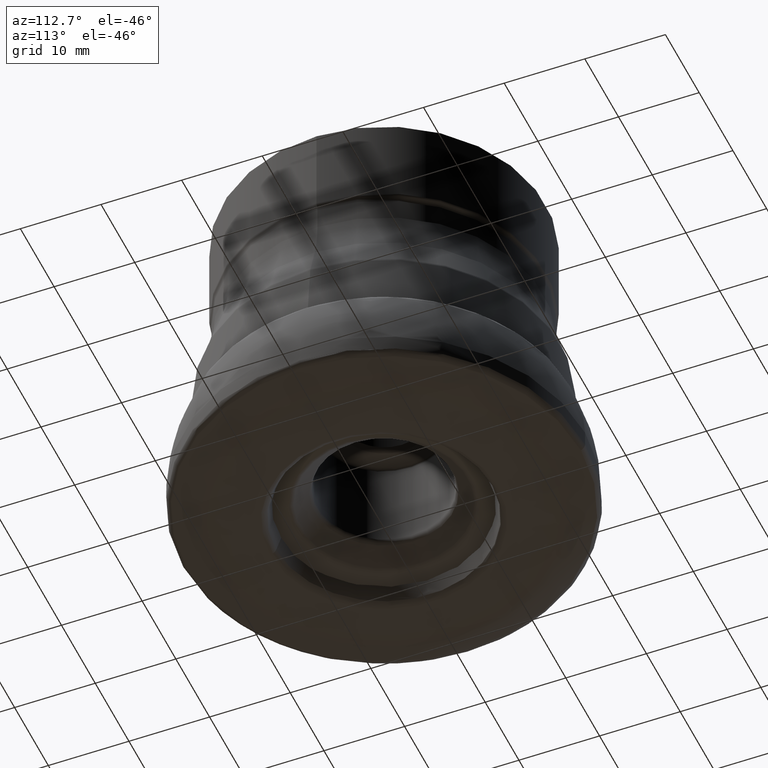
[diagram: clean part render]
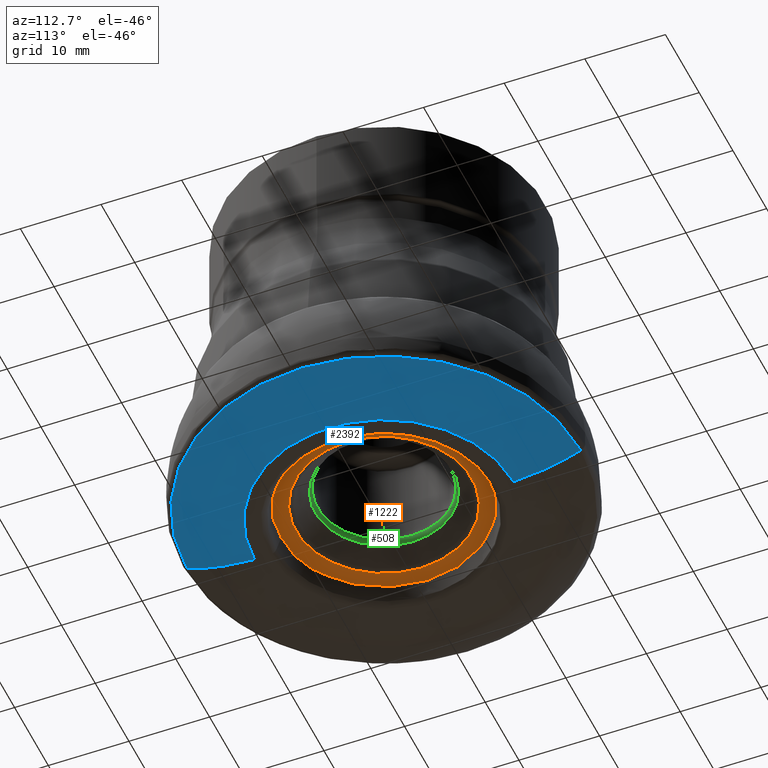
[diagram: same view with three faces highlighted in distinct colors, each labeled with its STEP entity id]
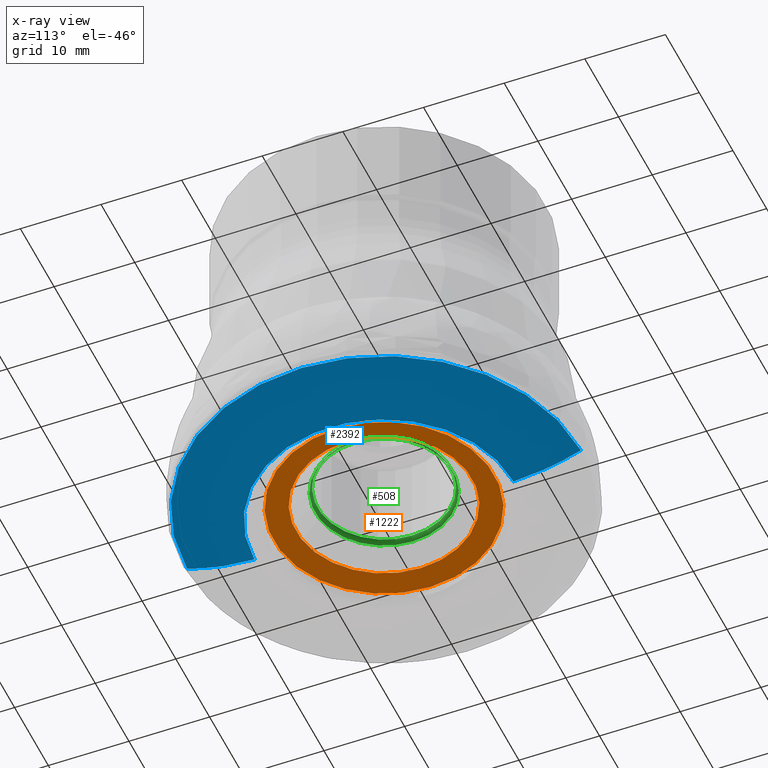
[diagram: x-ray of the same camera — body ghosted, the three highlighted faces saturated]
A machine part, auxiliary view with three faces highlighted in distinct colors.
The next image is the same camera in x-ray (body ghosted, the three faces saturated) — at least one of them is partly hidden behind the body in this view.
Their STEP definitions:

[orange] entity #1222 — the highlighted conical surface has half-angle 80 deg.
#198 = CARTESIAN_POINT ( 'NONE',  ( 13.67939974208696100, 0.0000000000000000000, -2.105485586522187100 ) ) ;
#199 = VERTEX_POINT ( 'NONE', #198 ) ;
#439 = CONICAL_SURFACE ( 'NONE', #1131, 13.67939974208696100, 1.396263401593441000 ) ;
#605 = DIRECTION ( 'NONE',  ( -0.0000000000000000000, -0.0000000000000000000, 1.000000000000000000 ) ) ;
#678 = CARTESIAN_POINT ( 'NONE',  ( 10.91237005489940000, 0.0000000000000000000, -2.593387576800428600 ) ) ;
#797 = CARTESIAN_POINT ( 'NONE',  ( 0.0000000000000000000, 0.0000000000000000000, -2.105485586522187100 ) ) ;
#841 = EDGE_CURVE ( 'NONE', #199, #199, #1325, .T. ) ;
#904 = ORIENTED_EDGE ( 'NONE', *, *, #2297, .F. ) ;
#1037 = ORIENTED_EDGE ( 'NONE', *, *, #841, .T. ) ;
#1076 = DIRECTION ( 'NONE',  ( 1.000000000000000000, 0.0000000000000000000, 0.0000000000000000000 ) ) ;
#1131 = AXIS2_PLACEMENT_3D ( 'NONE', #1693, #605, #1076 ) ;
#1152 = DIRECTION ( 'NONE',  ( -0.0000000000000000000, -0.0000000000000000000, 1.000000000000000000 ) ) ;
#1222 = ADVANCED_FACE ( 'NONE', ( #2151, #2231 ), #439, .F. ) ;
#1309 = CIRCLE ( 'NONE', #2067, 10.91237005489940000 ) ;
#1311 = DIRECTION ( 'NONE',  ( -0.0000000000000000000, -0.0000000000000000000, 1.000000000000000000 ) ) ;
#1325 = CIRCLE ( 'NONE', #1918, 13.67939974208696100 ) ;
#1455 = CARTESIAN_POINT ( 'NONE',  ( 0.0000000000000000000, 0.0000000000000000000, -2.593387576800428600 ) ) ;
#1501 = EDGE_LOOP ( 'NONE', ( #1037 ) ) ;
#1595 = EDGE_LOOP ( 'NONE', ( #904 ) ) ;
#1693 = CARTESIAN_POINT ( 'NONE',  ( 0.0000000000000000000, 0.0000000000000000000, -2.105485586522187100 ) ) ;
#1918 = AXIS2_PLACEMENT_3D ( 'NONE', #797, #1311, #2487 ) ;
#2049 = VERTEX_POINT ( 'NONE', #678 ) ;
#2067 = AXIS2_PLACEMENT_3D ( 'NONE', #1455, #1152, #2387 ) ;
#2151 = FACE_BOUND ( 'NONE', #1595, .T. ) ;
#2231 = FACE_OUTER_BOUND ( 'NONE', #1501, .T. ) ;
#2297 = EDGE_CURVE ( 'NONE', #2049, #2049, #1309, .T. ) ;
#2387 = DIRECTION ( 'NONE',  ( 1.000000000000000000, 0.0000000000000000000, 0.0000000000000000000 ) ) ;
#2487 = DIRECTION ( 'NONE',  ( 1.000000000000000000, 0.0000000000000000000, 0.0000000000000000000 ) ) ;

[blue] entity #2392 — the highlighted face is a freeform B-spline surface patch.
#16 = CIRCLE ( 'NONE', #1475, 24.41755495233327300 ) ;
#45 = CARTESIAN_POINT ( 'NONE',  ( 8.516172683243896200E-015, -19.17671606144000400, -0.3313400423312402000 ) ) ;
#68 = CARTESIAN_POINT ( 'NONE',  ( -9.216174313598521600E-015, 20.75297960225191200, -0.6511749883749936600 ) ) ;
#131 = VERTEX_POINT ( 'NONE', #1269 ) ;
#134 = CARTESIAN_POINT ( 'NONE',  ( 48.21662255860052700, 24.10831127930052300, -1.699295390986548700 ) ) ;
#140 = EDGE_LOOP ( 'NONE', ( #2732, #2482, #1975, #1404 ) ) ;
#153 = CARTESIAN_POINT ( 'NONE',  ( 8.516172683243896200E-015, -19.17671606144000400, -0.3313400423312402000 ) ) ;
#154 = CARTESIAN_POINT ( 'NONE',  ( 8.031905878851229900E-015, -18.08624416153462300, -0.1724084468149089100 ) ) ;
#185 = CARTESIAN_POINT ( 'NONE',  ( 7.197881011799724600E-015, -16.20818712129921100, -0.01483108566292312900 ) ) ;
#232 = CARTESIAN_POINT ( 'NONE',  ( 48.21662255860070400, -24.10831127930016700, -1.699295390986554900 ) ) ;
#320 = CARTESIAN_POINT ( 'NONE',  ( -1.683474378853960600E-013, 24.10831127930018900, -1.699295390986548700 ) ) ;
#329 = CARTESIAN_POINT ( 'NONE',  ( 7.328234110567301000E-015, -16.50171620481732800, -0.02925403785151098300 ) ) ;
#357 = CARTESIAN_POINT ( 'NONE',  ( -1.121856430058174000E-013, 16.06562259945931000, -0.009049119654720437200 ) ) ;
#377 = CARTESIAN_POINT ( 'NONE',  ( 9.727764153922443800E-015, -21.90497750937654300, -0.9491631913799264400 ) ) ;
#421 = CARTESIAN_POINT ( 'NONE',  ( 9.051594479012964600E-015, -20.38237876139583400, -0.5645714848133570600 ) ) ;
#427 = CARTESIAN_POINT ( 'NONE',  ( 8.766932898313672700E-015, -19.74137786701380300, -0.4332671469327173400 ) ) ;
#432 = B_SPLINE_CURVE_WITH_KNOTS ( 'NONE', 3,
 ( #2229, #185, #2764, #1831, #2593, #154, #2317, #45, #427, #646, #1485, #2681, #1071, #1244, #1791, #1793 ),
 .UNSPECIFIED., .F., .F.,
 ( 4, 1, 1, 1, 1, 1, 1, 1, 1, 1, 1, 1, 1, 4 ),
 ( 0.0000000000000000000, 0.05624323920077978200, 0.1142304190914140000, 0.1739694876135271000, 0.2354668623462451700, 0.2987272615500444200, 0.3637535291612357100, 0.4305464546262750500, 0.4991045886341387600, 0.5922512114771917300, 0.6889396384526660400, 0.7891499077100122600, 0.8928510362760578900, 1.000000000000000000 ),
 .UNSPECIFIED. ) ;
#459 = CARTESIAN_POINT ( 'NONE',  ( 32.13124519891872700, 16.06562259945953700, -0.009049119654720437200 ) ) ;
#473 = CARTESIAN_POINT ( 'NONE',  ( -8.622145527919388000E-015, 19.41534569333598300, -0.3692818287059965200 ) ) ;
#489 = CARTESIAN_POINT ( 'NONE',  ( -1.262955679595174200E-013, 18.08624416153462300, -0.1724084468149043900 ) ) ;
#502 = CARTESIAN_POINT ( 'NONE',  ( 35.12247414946659100, -17.56123707473316000, -0.1134358153339833900 ) ) ;
#514 = B_SPLINE_CURVE_WITH_KNOTS ( 'NONE', 3,
 ( #2137, #2388, #576, #2072, #725, #473, #2213, #68, #1885, #1158, #627, #2675, #1280, #1922, #1905, #888, #2759 ),
 .UNSPECIFIED., .F., .F.,
 ( 4, 1, 1, 1, 1, 1, 1, 1, 1, 1, 1, 1, 1, 1, 4 ),
 ( 0.0000000000000000000, 0.09097378461673622000, 0.1864390475092070300, 0.2864226775169417300, 0.3909401080283972900, 0.4999934414213442800, 0.5512210174053187000, 0.6035395345927899700, 0.6569467513318740800, 0.7114394706838004200, 0.7670134858016544000, 0.8236635256189207600, 0.8813832011901446800, 0.9401649530521819500, 1.000000000000000000 ),
 .UNSPECIFIED. ) ;
#568 = CARTESIAN_POINT ( 'NONE',  ( 1.043828655164331900E-014, -23.50493171218364500, -1.467469701939488900 ) ) ;
#576 = CARTESIAN_POINT ( 'NONE',  ( -7.452030544972890400E-015, 16.78048099274672500, -0.04471137197362161400 ) ) ;
#581 = CARTESIAN_POINT ( 'NONE',  ( 42.20570537244417200, -21.10285268622191900, -0.7333565515685376300 ) ) ;
#627 = CARTESIAN_POINT ( 'NONE',  ( -9.806805033041106700E-015, 22.08296174624952000, -1.004627220859267900 ) ) ;
#646 = CARTESIAN_POINT ( 'NONE',  ( 9.051594479012964600E-015, -20.38237876139583400, -0.5645714848133570600 ) ) ;
#685 = CARTESIAN_POINT ( 'NONE',  ( 39.48275573402773400, 19.74137786701407600, -0.4332671469327124000 ) ) ;
#693 = CARTESIAN_POINT ( 'NONE',  ( -1.339102925376223200E-013, 19.17671606144000400, -0.3313400423312354300 ) ) ;
#696 = CARTESIAN_POINT ( 'NONE',  ( 1.070624090684377500E-014, -24.10831127930018900, -1.699295390986554700 ) ) ;
#725 = CARTESIAN_POINT ( 'NONE',  ( -8.228348399948434500E-015, 18.52859339394120400, -0.2275951530160705800 ) ) ;
#806 = CARTESIAN_POINT ( 'NONE',  ( 8.271099763602134400E-015, -18.62486090665137800, -0.2447025828383222200 ) ) ;
#884 = CARTESIAN_POINT ( 'NONE',  ( 48.83510990466776700, 24.41755495233415000, -1.825446698476258700 ) ) ;
#888 = CARTESIAN_POINT ( 'NONE',  ( -1.076703370051832100E-014, 24.24520448076991000, -1.755138914582203800 ) ) ;
#896 = CARTESIAN_POINT ( 'NONE',  ( 38.35343212288026400, -19.17671606143998300, -0.3313400423312402000 ) ) ;
#902 = CIRCLE ( 'NONE', #2321, 16.06562259945931000 ) ;
#918 = DIRECTION ( 'NONE',  ( 0.0000000000000000000, 1.000000000000000000, 1.243271936475901300E-016 ) ) ;
#935 = CARTESIAN_POINT ( 'NONE',  ( 0.0000000000000000000, -16.06562259945931000, -0.009049119654724449600 ) ) ;
#972 = CARTESIAN_POINT ( 'NONE',  ( 35.12247414946647000, 17.56123707473342000, -0.1134358153339789900 ) ) ;
#979 = VERTEX_POINT ( 'NONE', #2449 ) ;
#1045 = EDGE_CURVE ( 'NONE', #2424, #979, #432, .T. ) ;
#1046 = CARTESIAN_POINT ( 'NONE',  ( 1.009324667980008200E-014, -22.72797099305309100, -1.201576209633579800 ) ) ;
#1071 = CARTESIAN_POINT ( 'NONE',  ( 1.009324667980008200E-014, -22.72797099305309100, -1.201576209633579800 ) ) ;
#1075 = CARTESIAN_POINT ( 'NONE',  ( 40.76475752279179700, 20.38237876139611900, -0.5645714848133519500 ) ) ;
#1128 = CARTESIAN_POINT ( 'NONE',  ( 1.084357268525241600E-014, -24.41755495233380600, -1.825446698476264500 ) ) ;
#1158 = CARTESIAN_POINT ( 'NONE',  ( -9.606911250643030800E-015, 21.63284096428872200, -0.8761395280615459400 ) ) ;
#1216 = CARTESIAN_POINT ( 'NONE',  ( 45.45594198610649500, -22.72797099305307000, -1.201576209633579800 ) ) ;
#1219 = EDGE_CURVE ( 'NONE', #131, #2692, #514, .T. ) ;
#1227 = CARTESIAN_POINT ( 'NONE',  ( -1.152308683760100600E-013, 16.50171620481732800, -0.02925403785150685800 ) ) ;
#1244 = CARTESIAN_POINT ( 'NONE',  ( 1.043828655164331900E-014, -23.50493171218364500, -1.467469701939488900 ) ) ;
#1254 =( BOUNDED_SURFACE ( )  B_SPLINE_SURFACE ( 3, 3, ( 
 ( #357, #459, #2896, #2740 ),
 ( #2452, #2183, #2100, #1317 ),
 ( #1227, #2129, #1523, #329 ),
 ( #2690, #1801, #2136, #1650 ),
 ( #1899, #972, #502, #2928 ),
 ( #489, #1257, #1712, #1766 ),
 ( #2877, #1476, #2912, #806 ),
 ( #693, #2005, #896, #153 ),
 ( #2919, #685, #1348, #1574 ),
 ( #2059, #1075, #2243, #421 ),
 ( #1490, #2432, #581, #2966 ),
 ( #1541, #2779, #1293, #377 ),
 ( #2763, #2659, #1216, #1046 ),
 ( #2939, #1324, #2173, #568 ),
 ( #320, #134, #232, #696 ),
 ( #1716, #884, #2869, #1128 ) ),
 .UNSPECIFIED., .F., .F., .T. ) 
 B_SPLINE_SURFACE_WITH_KNOTS ( ( 4, 1, 1, 1, 1, 1, 1, 1, 1, 1, 1, 1, 1, 4 ),
 ( 4, 4 ),
 ( 0.0000000000000000000, 0.05624323920077978200, 0.1142304190914140000, 0.1739694876135271000, 0.2354668623462451700, 0.2987272615500444200, 0.3637535291612357100, 0.4305464546262750500, 0.4991045886341387600, 0.5922512114771917300, 0.6889396384526660400, 0.7891499077100122600, 0.8928510362760578900, 1.000000000000000000 ),
 ( 0.0000000000000000000, 1.000000000000000000 ),
 .UNSPECIFIED. ) 
 GEOMETRIC_REPRESENTATION_ITEM ( )  RATIONAL_B_SPLINE_SURFACE ( (
 ( 1.000000000000000000, 0.3333333333333311500, 0.3333333333333311500, 1.000000000000000000),
 ( 1.000000000000000000, 0.3333333333333311500, 0.3333333333333311500, 1.000000000000000000),
 ( 1.000000000000000000, 0.3333333333333311500, 0.3333333333333311500, 1.000000000000000000),
 ( 1.000000000000000000, 0.3333333333333311500, 0.3333333333333311500, 1.000000000000000000),
 ( 1.000000000000000000, 0.3333333333333311500, 0.3333333333333311500, 1.000000000000000000),
 ( 1.000000000000000000, 0.3333333333333311500, 0.3333333333333311500, 1.000000000000000000),
 ( 1.000000000000000000, 0.3333333333333311500, 0.3333333333333311500, 1.000000000000000000),
 ( 1.000000000000000000, 0.3333333333333311500, 0.3333333333333311500, 1.000000000000000000),
 ( 1.000000000000000000, 0.3333333333333311500, 0.3333333333333311500, 1.000000000000000000),
 ( 1.000000000000000000, 0.3333333333333311500, 0.3333333333333311500, 1.000000000000000000),
 ( 1.000000000000000000, 0.3333333333333311500, 0.3333333333333311500, 1.000000000000000000),
 ( 1.000000000000000000, 0.3333333333333311500, 0.3333333333333311500, 1.000000000000000000),
 ( 1.000000000000000000, 0.3333333333333311500, 0.3333333333333311500, 1.000000000000000000),
 ( 1.000000000000000000, 0.3333333333333311500, 0.3333333333333311500, 1.000000000000000000),
 ( 1.000000000000000000, 0.3333333333333311500, 0.3333333333333311500, 1.000000000000000000),
 ( 1.000000000000000000, 0.3333333333333311500, 0.3333333333333311500, 1.000000000000000000) ) ) 
 REPRESENTATION_ITEM ( '' )  SURFACE ( )  );
#1257 = CARTESIAN_POINT ( 'NONE',  ( 36.17248832306935900, 18.08624416153487900, -0.1724084468149043900 ) ) ;
#1269 = CARTESIAN_POINT ( 'NONE',  ( 0.0000000000000000000, 16.06562259945931400, -0.009049119654724782600 ) ) ;
#1280 = CARTESIAN_POINT ( 'NONE',  ( -1.021489343742114000E-014, 23.00189513919955400, -1.295836019924321500 ) ) ;
#1293 = CARTESIAN_POINT ( 'NONE',  ( 43.80995501875338500, -21.90497750937652600, -0.9491631913799265500 ) ) ;
#1317 = CARTESIAN_POINT ( 'NONE',  ( 7.197881011799724600E-015, -16.20818712129921100, -0.01483108566292312900 ) ) ;
#1324 = CARTESIAN_POINT ( 'NONE',  ( 47.00986342436743100, 23.50493171218397500, -1.467469701939482900 ) ) ;
#1334 = DIRECTION ( 'NONE',  ( -0.0000000000000000000, 1.249000902703301100E-016, -1.000000000000000000 ) ) ;
#1348 = CARTESIAN_POINT ( 'NONE',  ( 39.48275573402787600, -19.74137786701378200, -0.4332671469327174000 ) ) ;
#1404 = ORIENTED_EDGE ( 'NONE', *, *, #1219, .F. ) ;
#1475 = AXIS2_PLACEMENT_3D ( 'NONE', #1618, #1334, #918 ) ;
#1476 = CARTESIAN_POINT ( 'NONE',  ( 37.24972181330287700, 18.62486090665164100, -0.2447025828383175600 ) ) ;
#1485 = CARTESIAN_POINT ( 'NONE',  ( 9.371549175006586900E-015, -21.10285268622194000, -0.7333565515685376300 ) ) ;
#1490 = CARTESIAN_POINT ( 'NONE',  ( -1.473604327005991700E-013, 21.10285268622194000, -0.7333565515685323000 ) ) ;
#1523 = CARTESIAN_POINT ( 'NONE',  ( 33.00343240963487500, -16.50171620481731000, -0.02925403785151098300 ) ) ;
#1541 = CARTESIAN_POINT ( 'NONE',  ( -1.529616404035335000E-013, 21.90497750937654300, -0.9491631913799211100 ) ) ;
#1574 = CARTESIAN_POINT ( 'NONE',  ( 8.766932898313672700E-015, -19.74137786701380300, -0.4332671469327173400 ) ) ;
#1618 = CARTESIAN_POINT ( 'NONE',  ( 0.0000000000000000000, 2.279984574235061700E-016, -1.825446698477422700 ) ) ;
#1650 = CARTESIAN_POINT ( 'NONE',  ( 7.571781675808940400E-015, -17.05013656685193300, -0.06710785822894205200 ) ) ;
#1712 = CARTESIAN_POINT ( 'NONE',  ( 36.17248832306950100, -18.08624416153460500, -0.1724084468149089100 ) ) ;
#1716 = CARTESIAN_POINT ( 'NONE',  ( -1.705068749125004400E-013, 24.41755495233380600, -1.825446698476258500 ) ) ;
#1766 = CARTESIAN_POINT ( 'NONE',  ( 8.031905878851229900E-015, -18.08624416153462300, -0.1724084468149089100 ) ) ;
#1791 = CARTESIAN_POINT ( 'NONE',  ( 1.070624090684377500E-014, -24.10831127930018900, -1.699295390986554700 ) ) ;
#1793 = CARTESIAN_POINT ( 'NONE',  ( 1.705068749124967600E-013, -24.41755495233328000, -1.825446698477433600 ) ) ;
#1801 = CARTESIAN_POINT ( 'NONE',  ( 34.10027313370397900, 17.05013656685217400, -0.06710785822893779200 ) ) ;
#1831 = CARTESIAN_POINT ( 'NONE',  ( 7.571781675808940400E-015, -17.05013656685193300, -0.06710785822894205200 ) ) ;
#1869 = DIRECTION ( 'NONE',  ( 0.0000000000000000000, 1.000000000000000000, 1.248488196881761400E-016 ) ) ;
#1885 = CARTESIAN_POINT ( 'NONE',  ( -9.409988934199925300E-015, 21.18941132881162700, -0.7584708044788128800 ) ) ;
#1899 = CARTESIAN_POINT ( 'NONE',  ( -1.226294630668621400E-013, 17.56123707473317800, -0.1134358153339790100 ) ) ;
#1905 = CARTESIAN_POINT ( 'NONE',  ( -1.061601988392470100E-014, 23.90515159670053400, -1.620898514656770700 ) ) ;
#1922 = CARTESIAN_POINT ( 'NONE',  ( -1.042271772135780400E-014, 23.46987382304745800, -1.459604808972632800 ) ) ;
#1948 = EDGE_CURVE ( 'NONE', #2692, #979, #16, .T. ) ;
#1975 = ORIENTED_EDGE ( 'NONE', *, *, #1948, .F. ) ;
#1985 = EDGE_CURVE ( 'NONE', #131, #2424, #902, .T. ) ;
#2005 = CARTESIAN_POINT ( 'NONE',  ( 38.35343212288013600, 19.17671606144027100, -0.3313400423312354300 ) ) ;
#2059 = CARTESIAN_POINT ( 'NONE',  ( -1.423293901732923500E-013, 20.38237876139583400, -0.5645714848133519500 ) ) ;
#2072 = CARTESIAN_POINT ( 'NONE',  ( -7.849713181493875900E-015, 17.67598267957055900, -0.1227979637679961900 ) ) ;
#2100 = CARTESIAN_POINT ( 'NONE',  ( 32.41637424259865000, -16.20818712129920100, -0.01483108566292312900 ) ) ;
#2129 = CARTESIAN_POINT ( 'NONE',  ( 33.00343240963474800, 16.50171620481755100, -0.02925403785150685800 ) ) ;
#2136 = CARTESIAN_POINT ( 'NONE',  ( 34.10027313370410000, -17.05013656685191800, -0.06710785822894203800 ) ) ;
#2137 = CARTESIAN_POINT ( 'NONE',  ( 0.0000000000000000000, 16.06562259945931400, -0.009049119654724782600 ) ) ;
#2173 = CARTESIAN_POINT ( 'NONE',  ( 47.00986342436761600, -23.50493171218362300, -1.467469701939488700 ) ) ;
#2183 = CARTESIAN_POINT ( 'NONE',  ( 32.41637424259852900, 16.20818712129943900, -0.01483108566291908000 ) ) ;
#2213 = CARTESIAN_POINT ( 'NONE',  ( -8.952533778846143100E-015, 20.15931389521666600, -0.5164630370800570300 ) ) ;
#2229 = CARTESIAN_POINT ( 'NONE',  ( 0.0000000000000000000, -16.06562259945931000, -0.009049119654724449600 ) ) ;
#2243 = CARTESIAN_POINT ( 'NONE',  ( 40.76475752279194600, -20.38237876139581700, -0.5645714848133570600 ) ) ;
#2317 = CARTESIAN_POINT ( 'NONE',  ( 8.271099763602134400E-015, -18.62486090665137800, -0.2447025828383222200 ) ) ;
#2321 = AXIS2_PLACEMENT_3D ( 'NONE', #2784, #2529, #1869 ) ;
#2388 = CARTESIAN_POINT ( 'NONE',  ( -7.237141472987871800E-015, 16.29659382048786400, -0.01841658171066957300 ) ) ;
#2392 = ADVANCED_FACE ( 'NONE', ( #2416 ), #1254, .F. ) ;
#2416 = FACE_OUTER_BOUND ( 'NONE', #140, .T. ) ;
#2424 = VERTEX_POINT ( 'NONE', #935 ) ;
#2432 = CARTESIAN_POINT ( 'NONE',  ( 42.20570537244401500, 21.10285268622223100, -0.7333565515685323000 ) ) ;
#2449 = CARTESIAN_POINT ( 'NONE',  ( 1.705068749124967600E-013, -24.41755495233328000, -1.825446698477433600 ) ) ;
#2452 = CARTESIAN_POINT ( 'NONE',  ( -1.131811657409876100E-013, 16.20818712129921100, -0.01483108566291908000 ) ) ;
#2482 = ORIENTED_EDGE ( 'NONE', *, *, #1045, .T. ) ;
#2529 = DIRECTION ( 'NONE',  ( -0.0000000000000000000, 1.249000902703301100E-016, -1.000000000000000000 ) ) ;
#2593 = CARTESIAN_POINT ( 'NONE',  ( 7.798755896507878900E-015, -17.56123707473317800, -0.1134358153339833900 ) ) ;
#2659 = CARTESIAN_POINT ( 'NONE',  ( 45.45594198610633200, 22.72797099305340800, -1.201576209633574300 ) ) ;
#2661 = CARTESIAN_POINT ( 'NONE',  ( -1.705068749124967100E-013, 24.41755495233327300, -1.825446698477419600 ) ) ;
#2675 = CARTESIAN_POINT ( 'NONE',  ( -1.000951668889090100E-014, 22.53942781512393600, -1.144397705636649400 ) ) ;
#2681 = CARTESIAN_POINT ( 'NONE',  ( 9.727764153922443800E-015, -21.90497750937654300, -0.9491631913799264400 ) ) ;
#2690 = CARTESIAN_POINT ( 'NONE',  ( -1.190604672957809100E-013, 17.05013656685193300, -0.06710785822893779200 ) ) ;
#2692 = VERTEX_POINT ( 'NONE', #2661 ) ;
#2732 = ORIENTED_EDGE ( 'NONE', *, *, #1985, .T. ) ;
#2740 = CARTESIAN_POINT ( 'NONE',  ( 7.134569645943197200E-015, -16.06562259945931000, -0.009049119654724449600 ) ) ;
#2759 = CARTESIAN_POINT ( 'NONE',  ( -1.705068749124967100E-013, 24.41755495233327300, -1.825446698477419600 ) ) ;
#2763 = CARTESIAN_POINT ( 'NONE',  ( -1.587085731840258100E-013, 22.72797099305309100, -1.201576209633574300 ) ) ;
#2764 = CARTESIAN_POINT ( 'NONE',  ( 7.328234110567301000E-015, -16.50171620481732800, -0.02925403785151098300 ) ) ;
#2779 = CARTESIAN_POINT ( 'NONE',  ( 43.80995501875322200, 21.90497750937684900, -0.9491631913799210000 ) ) ;
#2784 = CARTESIAN_POINT ( 'NONE',  ( 0.0000000000000000000, 1.130235861741851400E-018, -0.009049119654722442500 ) ) ;
#2869 = CARTESIAN_POINT ( 'NONE',  ( 48.83510990466795900, -24.41755495233378800, -1.825446698476264300 ) ) ;
#2877 = CARTESIAN_POINT ( 'NONE',  ( -1.300567085882445800E-013, 18.62486090665137800, -0.2447025828383175600 ) ) ;
#2896 = CARTESIAN_POINT ( 'NONE',  ( 32.13124519891884700, -16.06562259945929600, -0.009049119654724449600 ) ) ;
#2912 = CARTESIAN_POINT ( 'NONE',  ( 37.24972181330300500, -18.62486090665135700, -0.2447025828383222200 ) ) ;
#2919 = CARTESIAN_POINT ( 'NONE',  ( -1.378533048514591000E-013, 19.74137786701380300, -0.4332671469327124000 ) ) ;
#2928 = CARTESIAN_POINT ( 'NONE',  ( 7.798755896507878900E-015, -17.56123707473317800, -0.1134358153339833900 ) ) ;
#2939 = CARTESIAN_POINT ( 'NONE',  ( -1.641340608877427400E-013, 23.50493171218364500, -1.467469701939482900 ) ) ;
#2966 = CARTESIAN_POINT ( 'NONE',  ( 9.371549175006586900E-015, -21.10285268622194000, -0.7333565515685376300 ) ) ;

[green] entity #508 — the highlighted toroidal blend (fillet) surface has major radius 9.25 mm and minor (blend) radius 1 mm.
#187 = EDGE_CURVE ( 'NONE', #2630, #2630, #2191, .T. ) ;
#221 = AXIS2_PLACEMENT_3D ( 'NONE', #2208, #1421, #2339 ) ;
#269 = DIRECTION ( 'NONE',  ( -0.0000000000000000000, -0.0000000000000000000, 1.000000000000000000 ) ) ;
#418 = CARTESIAN_POINT ( 'NONE',  ( 0.0000000000000000000, 0.0000000000000000000, -4.707106781192361900 ) ) ;
#475 = EDGE_LOOP ( 'NONE', ( #1215 ) ) ;
#508 = ADVANCED_FACE ( 'NONE', ( #1525, #1739 ), #2695, .T. ) ;
#827 = CARTESIAN_POINT ( 'NONE',  ( 0.0000000000000000000, 0.0000000000000000000, -5.414213562378964900 ) ) ;
#1215 = ORIENTED_EDGE ( 'NONE', *, *, #187, .F. ) ;
#1233 = EDGE_CURVE ( 'NONE', #1496, #1496, #2379, .T. ) ;
#1421 = DIRECTION ( 'NONE',  ( -0.0000000000000000000, -0.0000000000000000000, 1.000000000000000000 ) ) ;
#1496 = VERTEX_POINT ( 'NONE', #2720 ) ;
#1517 = AXIS2_PLACEMENT_3D ( 'NONE', #827, #2834, #2401 ) ;
#1525 = FACE_OUTER_BOUND ( 'NONE', #475, .T. ) ;
#1739 = FACE_OUTER_BOUND ( 'NONE', #2345, .T. ) ;
#2152 = ORIENTED_EDGE ( 'NONE', *, *, #1233, .T. ) ;
#2191 = CIRCLE ( 'NONE', #1517, 8.249999999997820400 ) ;
#2208 = CARTESIAN_POINT ( 'NONE',  ( 0.0000000000000000000, 0.0000000000000000000, -5.414213562379533300 ) ) ;
#2295 = CARTESIAN_POINT ( 'NONE',  ( 8.249999999997820400, 0.0000000000000000000, -5.414213562378964900 ) ) ;
#2339 = DIRECTION ( 'NONE',  ( 1.000000000000000000, 0.0000000000000000000, 0.0000000000000000000 ) ) ;
#2345 = EDGE_LOOP ( 'NONE', ( #2152 ) ) ;
#2379 = CIRCLE ( 'NONE', #2744, 8.542893218811890700 ) ;
#2401 = DIRECTION ( 'NONE',  ( 1.000000000000000000, 0.0000000000000000000, 0.0000000000000000000 ) ) ;
#2444 = DIRECTION ( 'NONE',  ( 1.000000000000000000, 0.0000000000000000000, 0.0000000000000000000 ) ) ;
#2630 = VERTEX_POINT ( 'NONE', #2295 ) ;
#2695 = TOROIDAL_SURFACE ( 'NONE', #221, 9.249999999997818600, 1.000000000000000900 ) ;
#2720 = CARTESIAN_POINT ( 'NONE',  ( 8.542893218811890700, 0.0000000000000000000, -4.707106781192361900 ) ) ;
#2744 = AXIS2_PLACEMENT_3D ( 'NONE', #418, #269, #2444 ) ;
#2834 = DIRECTION ( 'NONE',  ( -0.0000000000000000000, -0.0000000000000000000, 1.000000000000000000 ) ) ;